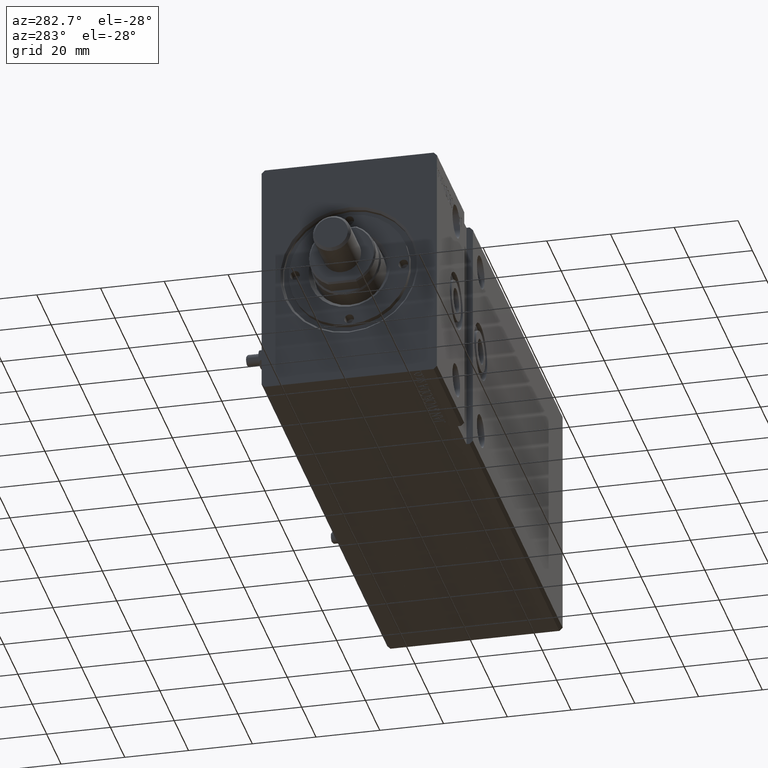
[diagram: clean part render]
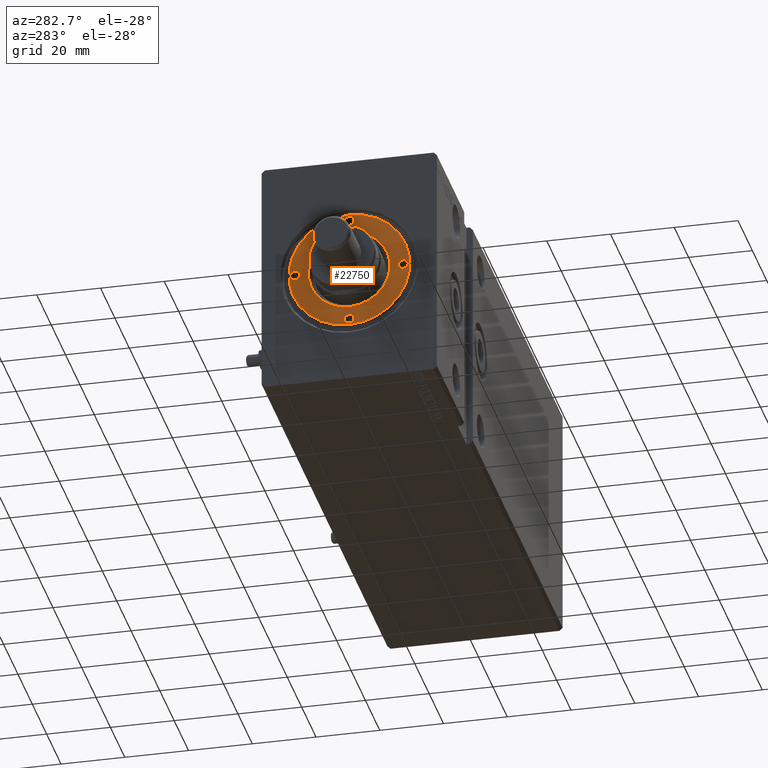
[diagram: same view with one face highlighted and labeled with its STEP entity id]
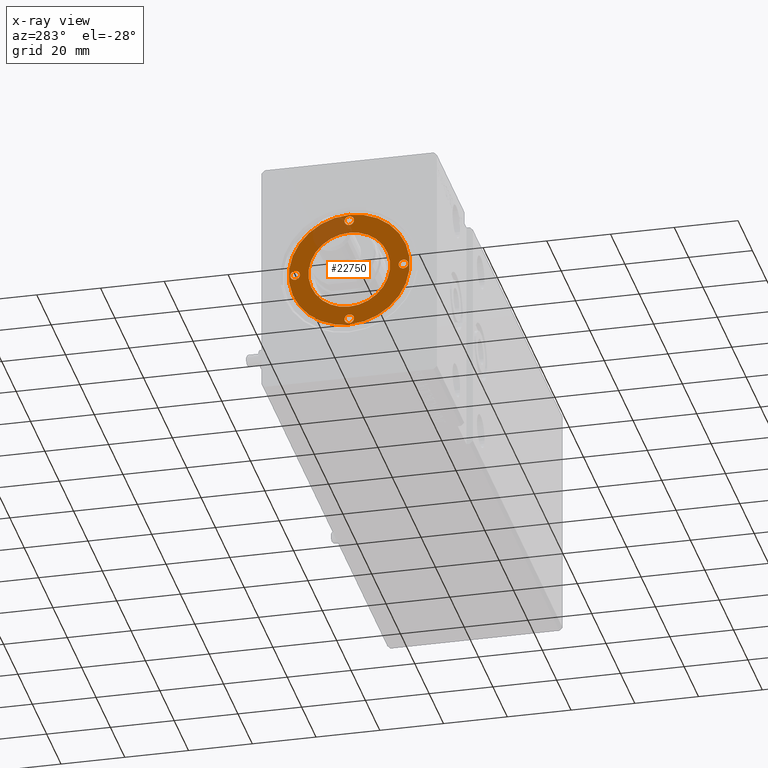
[diagram: x-ray of the same camera — body ghosted, the highlighted face saturated]
A machine part, auxiliary view. The second image highlights one B-rep face of the part: STEP entity #22750.
The next image is the same camera in x-ray: the body ghosted, the highlighted face saturated — about 12% of this face is hidden behind the body in this view.
In plain terms, the highlighted planar face has unit normal (-1, 0, 0).
Its self-contained STEP definition (entity closure, byte-faithful):
#188 = VERTEX_POINT ( 'NONE', #12209 ) ;
#405 = DIRECTION ( 'NONE',  ( -0.000000000000000000, -0.000000000000000000, 1.000000000000000000 ) ) ;
#1464 = CIRCLE ( 'NONE', #2791, 19.00000000000000000 ) ;
#1816 = ORIENTED_EDGE ( 'NONE', *, *, #33741, .F. ) ;
#2434 = CARTESIAN_POINT ( 'NONE',  ( -19.00000000000000000, 0.000000000000000000, 9.999999999999998224 ) ) ;
#2791 = AXIS2_PLACEMENT_3D ( 'NONE', #4911, #17663, #27625 ) ;
#3008 = FACE_OUTER_BOUND ( 'NONE', #23638, .T. ) ;
#3082 = CARTESIAN_POINT ( 'NONE',  ( 0.000000000000000000, -17.00000000000000000, 9.999999999999998224 ) ) ;
#4132 = DIRECTION ( 'NONE',  ( 1.000000000000000000, 0.000000000000000000, 0.000000000000000000 ) ) ;
#4911 = CARTESIAN_POINT ( 'NONE',  ( 0.000000000000000000, 0.000000000000000000, 9.999999999999998224 ) ) ;
#5012 = AXIS2_PLACEMENT_3D ( 'NONE', #17541, #30470, #14547 ) ;
#5287 = CIRCLE ( 'NONE', #18837, 12.79999999999997407 ) ;
#5623 = CARTESIAN_POINT ( 'NONE',  ( -1.499999999999996891, 17.00000000000000000, 9.999999999999998224 ) ) ;
#6261 = DIRECTION ( 'NONE',  ( -0.000000000000000000, -0.000000000000000000, 1.000000000000000000 ) ) ;
#6403 = FACE_BOUND ( 'NONE', #41807, .T. ) ;
#6965 = ORIENTED_EDGE ( 'NONE', *, *, #27448, .F. ) ;
#7195 = CIRCLE ( 'NONE', #41763, 1.499999999999997780 ) ;
#7328 = CARTESIAN_POINT ( 'NONE',  ( 0.000000000000000000, 17.00000000000000000, 9.999999999999998224 ) ) ;
#7854 = EDGE_CURVE ( 'NONE', #8287, #28934, #38138, .T. ) ;
#8287 = VERTEX_POINT ( 'NONE', #2434 ) ;
#8762 = CARTESIAN_POINT ( 'NONE',  ( 0.000000000000000000, 0.000000000000000000, 9.999999999999998224 ) ) ;
#8894 = AXIS2_PLACEMENT_3D ( 'NONE', #9172, #28263, #34832 ) ;
#9172 = CARTESIAN_POINT ( 'NONE',  ( 0.000000000000000000, 0.000000000000000000, 9.999999999999998224 ) ) ;
#9806 = EDGE_CURVE ( 'NONE', #31102, #33434, #15155, .T. ) ;
#10086 = DIRECTION ( 'NONE',  ( 1.000000000000000000, 0.000000000000000000, 0.000000000000000000 ) ) ;
#10096 = CARTESIAN_POINT ( 'NONE',  ( -1.499999999999996891, -17.00000000000000000, 9.999999999999998224 ) ) ;
#10183 = CARTESIAN_POINT ( 'NONE',  ( 19.00000000000000000, 2.326828918379970970E-15, 9.999999999999998224 ) ) ;
#11242 = AXIS2_PLACEMENT_3D ( 'NONE', #3082, #6261, #12639 ) ;
#12209 = CARTESIAN_POINT ( 'NONE',  ( -15.50000000000000355, 0.000000000000000000, 9.999999999999998224 ) ) ;
#12571 = VERTEX_POINT ( 'NONE', #24730 ) ;
#12639 = DIRECTION ( 'NONE',  ( 1.000000000000000000, 0.000000000000000000, 0.000000000000000000 ) ) ;
#12717 = AXIS2_PLACEMENT_3D ( 'NONE', #14473, #24034, #27413 ) ;
#12755 = DIRECTION ( 'NONE',  ( 1.000000000000000000, 0.000000000000000000, 0.000000000000000000 ) ) ;
#14259 = ORIENTED_EDGE ( 'NONE', *, *, #15582, .F. ) ;
#14473 = CARTESIAN_POINT ( 'NONE',  ( 17.00000000000000000, 0.000000000000000000, 9.999999999999998224 ) ) ;
#14547 = DIRECTION ( 'NONE',  ( 1.000000000000000000, 0.000000000000000000, 0.000000000000000000 ) ) ;
#15155 = CIRCLE ( 'NONE', #34104, 1.499999999999996891 ) ;
#15582 = EDGE_CURVE ( 'NONE', #33434, #31102, #29538, .T. ) ;
#15640 = EDGE_LOOP ( 'NONE', ( #29422, #18406 ) ) ;
#16754 = DIRECTION ( 'NONE',  ( 1.000000000000000000, 0.000000000000000000, 0.000000000000000000 ) ) ;
#16759 = VERTEX_POINT ( 'NONE', #22565 ) ;
#16798 = VERTEX_POINT ( 'NONE', #19786 ) ;
#17090 = DIRECTION ( 'NONE',  ( 1.000000000000000000, 0.000000000000000000, 0.000000000000000000 ) ) ;
#17361 = AXIS2_PLACEMENT_3D ( 'NONE', #26209, #39154, #10086 ) ;
#17379 = VERTEX_POINT ( 'NONE', #39210 ) ;
#17541 = CARTESIAN_POINT ( 'NONE',  ( 0.000000000000000000, 17.00000000000000000, 9.999999999999998224 ) ) ;
#17663 = DIRECTION ( 'NONE',  ( 0.000000000000000000, 0.000000000000000000, 1.000000000000000000 ) ) ;
#18155 = ORIENTED_EDGE ( 'NONE', *, *, #9806, .F. ) ;
#18406 = ORIENTED_EDGE ( 'NONE', *, *, #35936, .T. ) ;
#18717 = FACE_BOUND ( 'NONE', #32956, .T. ) ;
#18782 = AXIS2_PLACEMENT_3D ( 'NONE', #7328, #20269, #17090 ) ;
#18837 = AXIS2_PLACEMENT_3D ( 'NONE', #41126, #31146, #24159 ) ;
#18927 = DIRECTION ( 'NONE',  ( 1.000000000000000000, 0.000000000000000000, 0.000000000000000000 ) ) ;
#19352 = PLANE ( 'NONE',  #8894 ) ;
#19541 = ORIENTED_EDGE ( 'NONE', *, *, #32445, .F. ) ;
#19786 = CARTESIAN_POINT ( 'NONE',  ( -18.50000000000000000, 1.836970198721026236E-16, 9.999999999999998224 ) ) ;
#19885 = DIRECTION ( 'NONE',  ( -0.000000000000000000, -0.000000000000000000, 1.000000000000000000 ) ) ;
#20269 = DIRECTION ( 'NONE',  ( -0.000000000000000000, -0.000000000000000000, 1.000000000000000000 ) ) ;
#21390 = EDGE_LOOP ( 'NONE', ( #18155, #14259 ) ) ;
#21793 = AXIS2_PLACEMENT_3D ( 'NONE', #31848, #41827, #12755 ) ;
#22565 = CARTESIAN_POINT ( 'NONE',  ( 12.79999999999997407, 0.000000000000000000, 9.999999999999998224 ) ) ;
#22750 = ADVANCED_FACE ( 'NONE', ( #41418, #6403, #18717, #41220, #28900, #3008 ), #19352, .T. ) ;
#23638 = EDGE_LOOP ( 'NONE', ( #24419, #40330 ) ) ;
#24034 = DIRECTION ( 'NONE',  ( -0.000000000000000000, -0.000000000000000000, 1.000000000000000000 ) ) ;
#24087 = EDGE_CURVE ( 'NONE', #28934, #8287, #1464, .T. ) ;
#24138 = CIRCLE ( 'NONE', #17361, 1.499999999999997780 ) ;
#24159 = DIRECTION ( 'NONE',  ( 1.000000000000000000, 0.000000000000000000, 0.000000000000000000 ) ) ;
#24210 = EDGE_CURVE ( 'NONE', #16759, #39909, #39384, .T. ) ;
#24419 = ORIENTED_EDGE ( 'NONE', *, *, #7854, .T. ) ;
#24730 = CARTESIAN_POINT ( 'NONE',  ( 1.499999999999996891, 17.00000000000000000, 9.999999999999998224 ) ) ;
#24772 = CARTESIAN_POINT ( 'NONE',  ( 1.499999999999996891, -17.00000000000000000, 9.999999999999998224 ) ) ;
#25086 = DIRECTION ( 'NONE',  ( 0.000000000000000000, 0.000000000000000000, 1.000000000000000000 ) ) ;
#25165 = CARTESIAN_POINT ( 'NONE',  ( -12.79999999999997407, 1.567547902908609029E-15, 9.999999999999998224 ) ) ;
#25624 = CIRCLE ( 'NONE', #35771, 1.499999999999997780 ) ;
#25974 = AXIS2_PLACEMENT_3D ( 'NONE', #8762, #25086, #18927 ) ;
#26052 = DIRECTION ( 'NONE',  ( 1.000000000000000000, 0.000000000000000000, 0.000000000000000000 ) ) ;
#26209 = CARTESIAN_POINT ( 'NONE',  ( -17.00000000000000000, 0.000000000000000000, 9.999999999999998224 ) ) ;
#26427 = CARTESIAN_POINT ( 'NONE',  ( 17.00000000000000000, 0.000000000000000000, 9.999999999999998224 ) ) ;
#26877 = CARTESIAN_POINT ( 'NONE',  ( 18.50000000000000000, 0.000000000000000000, 9.999999999999998224 ) ) ;
#27413 = DIRECTION ( 'NONE',  ( 1.000000000000000000, 0.000000000000000000, 0.000000000000000000 ) ) ;
#27448 = EDGE_CURVE ( 'NONE', #188, #16798, #24138, .T. ) ;
#27625 = DIRECTION ( 'NONE',  ( 1.000000000000000000, 0.000000000000000000, 0.000000000000000000 ) ) ;
#28115 = EDGE_CURVE ( 'NONE', #17379, #36333, #7195, .T. ) ;
#28263 = DIRECTION ( 'NONE',  ( 0.000000000000000000, 0.000000000000000000, 1.000000000000000000 ) ) ;
#28900 = FACE_BOUND ( 'NONE', #15640, .T. ) ;
#28934 = VERTEX_POINT ( 'NONE', #10183 ) ;
#29422 = ORIENTED_EDGE ( 'NONE', *, *, #24210, .T. ) ;
#29538 = CIRCLE ( 'NONE', #11242, 1.499999999999996891 ) ;
#30242 = DIRECTION ( 'NONE',  ( -0.000000000000000000, -0.000000000000000000, 1.000000000000000000 ) ) ;
#30470 = DIRECTION ( 'NONE',  ( -0.000000000000000000, -0.000000000000000000, 1.000000000000000000 ) ) ;
#31000 = CIRCLE ( 'NONE', #12717, 1.499999999999997780 ) ;
#31102 = VERTEX_POINT ( 'NONE', #24772 ) ;
#31146 = DIRECTION ( 'NONE',  ( -0.000000000000000000, -0.000000000000000000, -1.000000000000000000 ) ) ;
#31848 = CARTESIAN_POINT ( 'NONE',  ( 0.000000000000000000, 0.000000000000000000, 9.999999999999998224 ) ) ;
#31995 = CARTESIAN_POINT ( 'NONE',  ( -17.00000000000000000, 0.000000000000000000, 9.999999999999998224 ) ) ;
#32445 = EDGE_CURVE ( 'NONE', #16798, #188, #25624, .T. ) ;
#32956 = EDGE_LOOP ( 'NONE', ( #36667, #40538 ) ) ;
#33434 = VERTEX_POINT ( 'NONE', #10096 ) ;
#33741 = EDGE_CURVE ( 'NONE', #35579, #12571, #39097, .T. ) ;
#34104 = AXIS2_PLACEMENT_3D ( 'NONE', #39238, #405, #16754 ) ;
#34832 = DIRECTION ( 'NONE',  ( 1.000000000000000000, 0.000000000000000000, -0.000000000000000000 ) ) ;
#34846 = CIRCLE ( 'NONE', #5012, 1.499999999999996891 ) ;
#35453 = EDGE_CURVE ( 'NONE', #12571, #35579, #34846, .T. ) ;
#35579 = VERTEX_POINT ( 'NONE', #5623 ) ;
#35771 = AXIS2_PLACEMENT_3D ( 'NONE', #31995, #19885, #26052 ) ;
#35936 = EDGE_CURVE ( 'NONE', #39909, #16759, #5287, .T. ) ;
#36333 = VERTEX_POINT ( 'NONE', #26877 ) ;
#36667 = ORIENTED_EDGE ( 'NONE', *, *, #41340, .F. ) ;
#38138 = CIRCLE ( 'NONE', #25974, 19.00000000000000000 ) ;
#38154 = EDGE_LOOP ( 'NONE', ( #6965, #19541 ) ) ;
#39097 = CIRCLE ( 'NONE', #18782, 1.499999999999996891 ) ;
#39154 = DIRECTION ( 'NONE',  ( -0.000000000000000000, -0.000000000000000000, 1.000000000000000000 ) ) ;
#39210 = CARTESIAN_POINT ( 'NONE',  ( 15.50000000000000355, 1.836970198721027222E-16, 9.999999999999998224 ) ) ;
#39238 = CARTESIAN_POINT ( 'NONE',  ( 0.000000000000000000, -17.00000000000000000, 9.999999999999998224 ) ) ;
#39384 = CIRCLE ( 'NONE', #21793, 12.79999999999997407 ) ;
#39909 = VERTEX_POINT ( 'NONE', #25165 ) ;
#40330 = ORIENTED_EDGE ( 'NONE', *, *, #24087, .T. ) ;
#40435 = ORIENTED_EDGE ( 'NONE', *, *, #35453, .F. ) ;
#40538 = ORIENTED_EDGE ( 'NONE', *, *, #28115, .F. ) ;
#41126 = CARTESIAN_POINT ( 'NONE',  ( 0.000000000000000000, 0.000000000000000000, 9.999999999999998224 ) ) ;
#41220 = FACE_BOUND ( 'NONE', #21390, .T. ) ;
#41340 = EDGE_CURVE ( 'NONE', #36333, #17379, #31000, .T. ) ;
#41418 = FACE_BOUND ( 'NONE', #38154, .T. ) ;
#41763 = AXIS2_PLACEMENT_3D ( 'NONE', #26427, #30242, #4132 ) ;
#41807 = EDGE_LOOP ( 'NONE', ( #40435, #1816 ) ) ;
#41827 = DIRECTION ( 'NONE',  ( -0.000000000000000000, -0.000000000000000000, -1.000000000000000000 ) ) ;